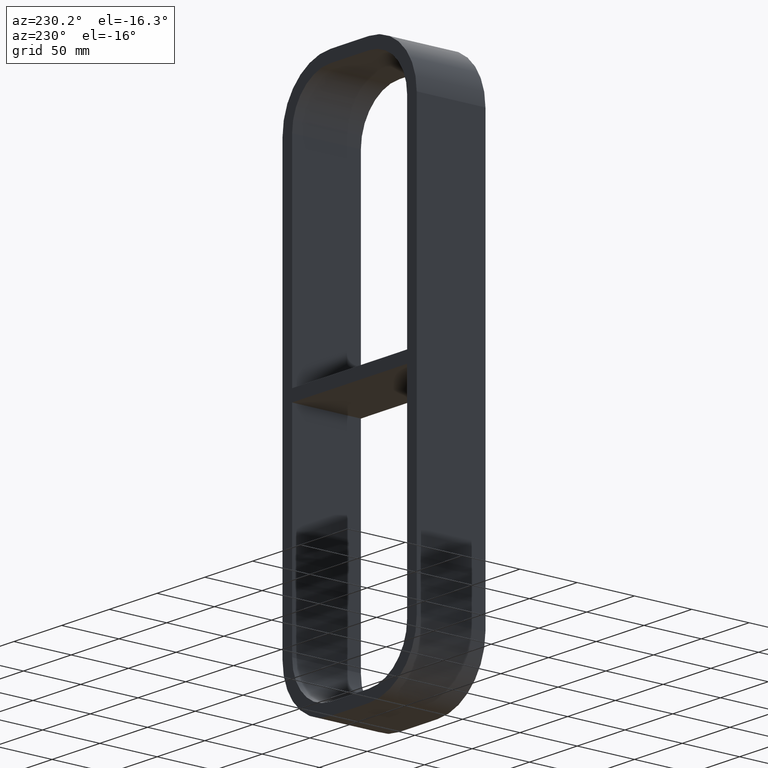
[diagram: clean part render]
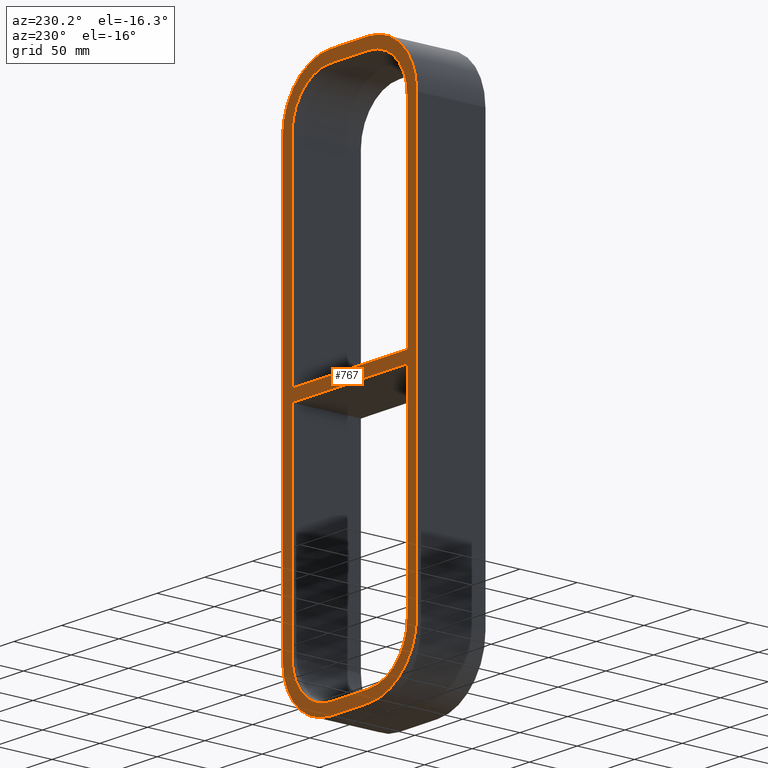
[diagram: same view with one face highlighted and labeled with its STEP entity id]
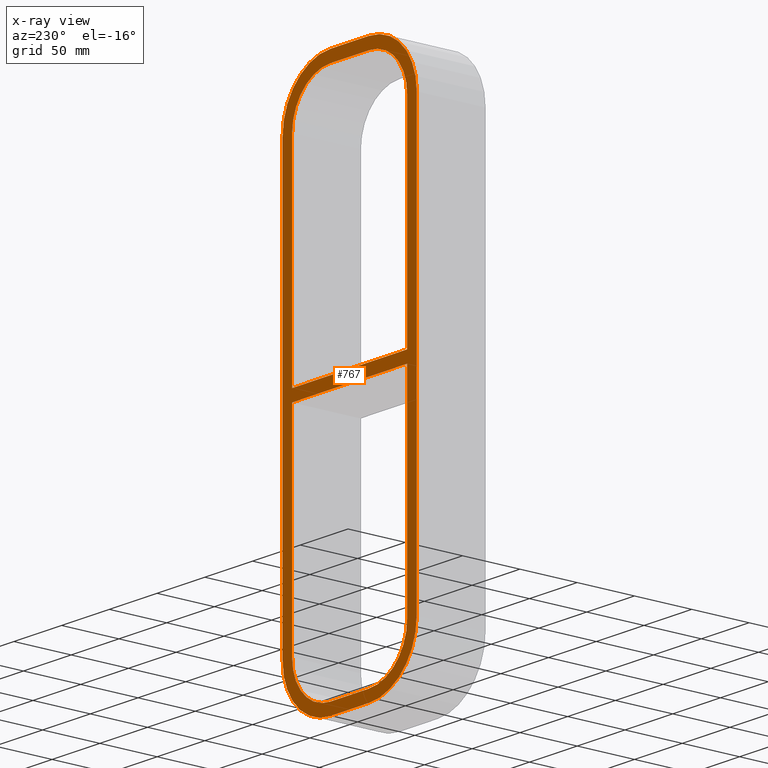
[diagram: x-ray of the same camera — body ghosted, the highlighted face saturated]
A machine part, auxiliary view. The second image highlights one B-rep face of the part: STEP entity #767.
The next image is the same camera in x-ray: the body ghosted, the highlighted face saturated — about 0% of this face is hidden behind the body in this view.
In plain terms, the highlighted planar face has unit normal (0, 1, 0).
Its self-contained STEP definition (entity closure, byte-faithful):
#83=CARTESIAN_POINT('',(-60.249999999999851,57.0,-5.000000000009379));
#84=VERTEX_POINT('',#83);
#91=CARTESIAN_POINT('',(60.249999999999972,57.0,-5.000000000009379));
#92=VERTEX_POINT('',#91);
#93=CARTESIAN_POINT('',(60.249999999999957,57.0,-5.000000000009379));
#94=DIRECTION('',(-1.0,0.0,0.0));
#95=VECTOR('',#94,120.49999999999982);
#96=LINE('',#93,#95);
#97=EDGE_CURVE('',#92,#84,#96,.T.);
#123=CARTESIAN_POINT('',(60.249999999999972,57.0,5.0));
#124=VERTEX_POINT('',#123);
#131=CARTESIAN_POINT('',(-60.249999999999858,57.0,5.0));
#132=VERTEX_POINT('',#131);
#133=CARTESIAN_POINT('',(-60.249999999999858,57.0,5.0));
#134=DIRECTION('',(1.0,0.0,0.0));
#135=VECTOR('',#134,120.49999999999983);
#136=LINE('',#133,#135);
#137=EDGE_CURVE('',#132,#124,#136,.T.);
#154=CARTESIAN_POINT('',(-60.250000000000014,57.0,182.99999999999997));
#155=VERTEX_POINT('',#154);
#156=CARTESIAN_POINT('',(-60.250000000000014,57.0,182.99999999999994));
#157=DIRECTION('',(0.0,0.0,-1.0));
#158=VECTOR('',#157,177.99999999999994);
#159=LINE('',#156,#158);
#160=EDGE_CURVE('',#155,#132,#159,.T.);
#185=CARTESIAN_POINT('',(60.25,57.0,-182.99999999999997));
#186=VERTEX_POINT('',#185);
#187=CARTESIAN_POINT('',(60.25,57.0,-182.99999999999994));
#188=DIRECTION('',(0.0,0.0,1.0));
#189=VECTOR('',#188,177.99999999999056);
#190=LINE('',#187,#189);
#191=EDGE_CURVE('',#186,#92,#190,.T.);
#224=CARTESIAN_POINT('',(60.25,57.0,183.0));
#225=VERTEX_POINT('',#224);
#232=CARTESIAN_POINT('',(60.25,57.0,5.0));
#233=DIRECTION('',(0.0,0.0,1.0));
#234=VECTOR('',#233,178.0);
#235=LINE('',#232,#234);
#236=EDGE_CURVE('',#124,#225,#235,.T.);
#246=CARTESIAN_POINT('',(20.249999999999993,57.0,-233.0));
#247=VERTEX_POINT('',#246);
#248=CARTESIAN_POINT('',(70.25,57.0,-183.0));
#249=VERTEX_POINT('',#248);
#250=CARTESIAN_POINT('',(20.249999999999993,57.0,-183.0));
#251=DIRECTION('',(0.0,-1.0,0.0));
#252=DIRECTION('',(0.707106781186547,0.0,-0.707106781186547));
#253=AXIS2_PLACEMENT_3D('',#250,#251,#252);
#254=CIRCLE('',#253,49.999999999999986);
#255=EDGE_CURVE('',#247,#249,#254,.T.);
#420=CARTESIAN_POINT('',(70.25,57.0,183.0));
#421=VERTEX_POINT('',#420);
#422=CARTESIAN_POINT('',(70.25,57.0,183.0));
#423=DIRECTION('',(0.0,0.0,-1.0));
#424=VECTOR('',#423,366.0);
#425=LINE('',#422,#424);
#426=EDGE_CURVE('',#421,#249,#425,.T.);
#445=CARTESIAN_POINT('',(20.249999999999993,57.0,233.0));
#446=VERTEX_POINT('',#445);
#447=CARTESIAN_POINT('',(20.249999999999993,57.0,183.0));
#448=DIRECTION('',(0.0,-1.0,0.0));
#449=DIRECTION('',(0.707106781186547,0.0,0.707106781186547));
#450=AXIS2_PLACEMENT_3D('',#447,#448,#449);
#451=CIRCLE('',#450,49.999999999999986);
#452=EDGE_CURVE('',#421,#446,#451,.T.);
#468=CARTESIAN_POINT('',(-70.250000000000014,57.0,-183.0));
#469=VERTEX_POINT('',#468);
#470=CARTESIAN_POINT('',(-20.250000000000014,57.0,-233.0));
#471=VERTEX_POINT('',#470);
#472=CARTESIAN_POINT('',(-20.250000000000014,57.0,-183.0));
#473=DIRECTION('',(0.0,-1.0,0.0));
#474=DIRECTION('',(-0.707106781186547,0.0,-0.707106781186547));
#475=AXIS2_PLACEMENT_3D('',#472,#473,#474);
#476=CIRCLE('',#475,49.999999999999986);
#477=EDGE_CURVE('',#469,#471,#476,.T.);
#502=CARTESIAN_POINT('',(-70.250000000000014,57.0,183.0));
#503=VERTEX_POINT('',#502);
#510=CARTESIAN_POINT('',(-70.250000000000014,57.0,-183.0));
#511=DIRECTION('',(0.0,0.0,1.0));
#512=VECTOR('',#511,366.0);
#513=LINE('',#510,#512);
#514=EDGE_CURVE('',#469,#503,#513,.T.);
#524=CARTESIAN_POINT('',(-20.250000000000014,57.0,233.0));
#525=VERTEX_POINT('',#524);
#526=CARTESIAN_POINT('',(-20.250000000000014,57.0,183.0));
#527=DIRECTION('',(0.0,-1.0,0.0));
#528=DIRECTION('',(-0.707106781186547,0.0,0.707106781186547));
#529=AXIS2_PLACEMENT_3D('',#526,#527,#528);
#530=CIRCLE('',#529,49.999999999999986);
#531=EDGE_CURVE('',#525,#503,#530,.T.);
#550=CARTESIAN_POINT('',(-20.250000000000014,57.0,233.0));
#551=DIRECTION('',(1.0,0.0,0.0));
#552=VECTOR('',#551,40.5);
#553=LINE('',#550,#552);
#554=EDGE_CURVE('',#525,#446,#553,.T.);
#568=CARTESIAN_POINT('',(-20.250000000000014,57.0,223.0));
#569=VERTEX_POINT('',#568);
#570=CARTESIAN_POINT('',(-20.250000000000014,57.0,182.99999999999997));
#571=DIRECTION('',(0.0,1.0,0.0));
#572=DIRECTION('',(-0.707106781186547,0.0,0.707106781186547));
#573=AXIS2_PLACEMENT_3D('',#570,#571,#572);
#574=CIRCLE('',#573,39.999999999999993);
#575=EDGE_CURVE('',#155,#569,#574,.T.);
#593=CARTESIAN_POINT('',(-60.250000000000014,57.0,-182.99999999999997));
#594=VERTEX_POINT('',#593);
#601=CARTESIAN_POINT('',(-60.250000000000014,57.0,-5.000000000009379));
#602=DIRECTION('',(0.0,0.0,-1.0));
#603=VECTOR('',#602,177.99999999999059);
#604=LINE('',#601,#603);
#605=EDGE_CURVE('',#84,#594,#604,.T.);
#616=CARTESIAN_POINT('',(20.250000000000004,57.0,223.0));
#617=VERTEX_POINT('',#616);
#624=CARTESIAN_POINT('',(20.25,57.0,183.0));
#625=DIRECTION('',(0.0,1.0,0.0));
#626=DIRECTION('',(0.707106781186548,0.0,0.707106781186547));
#627=AXIS2_PLACEMENT_3D('',#624,#625,#626);
#628=CIRCLE('',#627,40.0);
#629=EDGE_CURVE('',#617,#225,#628,.T.);
#641=CARTESIAN_POINT('',(20.250000000000004,57.0,223.0));
#642=DIRECTION('',(-1.0,0.0,0.0));
#643=VECTOR('',#642,40.500000000000014);
#644=LINE('',#641,#643);
#645=EDGE_CURVE('',#617,#569,#644,.T.);
#658=CARTESIAN_POINT('',(-20.250000000000007,57.0,-222.99999999999997));
#659=VERTEX_POINT('',#658);
#666=CARTESIAN_POINT('',(-20.250000000000007,57.0,-182.99999999999997));
#667=DIRECTION('',(0.0,1.0,0.0));
#668=DIRECTION('',(-0.707106781186547,0.0,-0.707106781186548));
#669=AXIS2_PLACEMENT_3D('',#666,#667,#668);
#670=CIRCLE('',#669,40.0);
#671=EDGE_CURVE('',#659,#594,#670,.T.);
#684=CARTESIAN_POINT('',(20.250000000000004,57.0,-222.99999999999997));
#685=VERTEX_POINT('',#684);
#692=CARTESIAN_POINT('',(-20.250000000000011,57.0,-222.99999999999997));
#693=DIRECTION('',(1.0,0.0,0.0));
#694=VECTOR('',#693,40.500000000000014);
#695=LINE('',#692,#694);
#696=EDGE_CURVE('',#659,#685,#695,.T.);
#706=CARTESIAN_POINT('',(20.250000000000004,57.0,-182.99999999999997));
#707=DIRECTION('',(0.0,1.0,0.0));
#708=DIRECTION('',(0.707106781186547,0.0,-0.707106781186547));
#709=AXIS2_PLACEMENT_3D('',#706,#707,#708);
#710=CIRCLE('',#709,39.999999999999993);
#711=EDGE_CURVE('',#186,#685,#710,.T.);
#727=CARTESIAN_POINT('',(20.25,57.0,-233.0));
#728=DIRECTION('',(-1.0,0.0,0.0));
#729=VECTOR('',#728,40.5);
#730=LINE('',#727,#729);
#731=EDGE_CURVE('',#247,#471,#730,.T.);
#736=CARTESIAN_POINT('',(-4.543402E-015,57.0,0.0));
#737=DIRECTION('',(0.0,1.0,0.0));
#738=DIRECTION('',(0.0,0.0,1.0));
#739=AXIS2_PLACEMENT_3D('',#736,#737,#738);
#740=PLANE('',#739);
#741=ORIENTED_EDGE('',*,*,#255,.F.);
#742=ORIENTED_EDGE('',*,*,#731,.T.);
#743=ORIENTED_EDGE('',*,*,#477,.F.);
#744=ORIENTED_EDGE('',*,*,#514,.T.);
#745=ORIENTED_EDGE('',*,*,#531,.F.);
#746=ORIENTED_EDGE('',*,*,#554,.T.);
#747=ORIENTED_EDGE('',*,*,#452,.F.);
#748=ORIENTED_EDGE('',*,*,#426,.T.);
#749=EDGE_LOOP('',(#741,#742,#743,#744,#745,#746,#747,#748));
#750=FACE_OUTER_BOUND('',#749,.T.);
#751=ORIENTED_EDGE('',*,*,#605,.T.);
#752=ORIENTED_EDGE('',*,*,#671,.F.);
#753=ORIENTED_EDGE('',*,*,#696,.T.);
#754=ORIENTED_EDGE('',*,*,#711,.F.);
#755=ORIENTED_EDGE('',*,*,#191,.T.);
#756=ORIENTED_EDGE('',*,*,#97,.T.);
#757=EDGE_LOOP('',(#751,#752,#753,#754,#755,#756));
#758=FACE_BOUND('',#757,.T.);
#759=ORIENTED_EDGE('',*,*,#137,.T.);
#760=ORIENTED_EDGE('',*,*,#236,.T.);
#761=ORIENTED_EDGE('',*,*,#629,.F.);
#762=ORIENTED_EDGE('',*,*,#645,.T.);
#763=ORIENTED_EDGE('',*,*,#575,.F.);
#764=ORIENTED_EDGE('',*,*,#160,.T.);
#765=EDGE_LOOP('',(#759,#760,#761,#762,#763,#764));
#766=FACE_BOUND('',#765,.T.);
#767=ADVANCED_FACE('',(#750,#758,#766),#740,.T.);